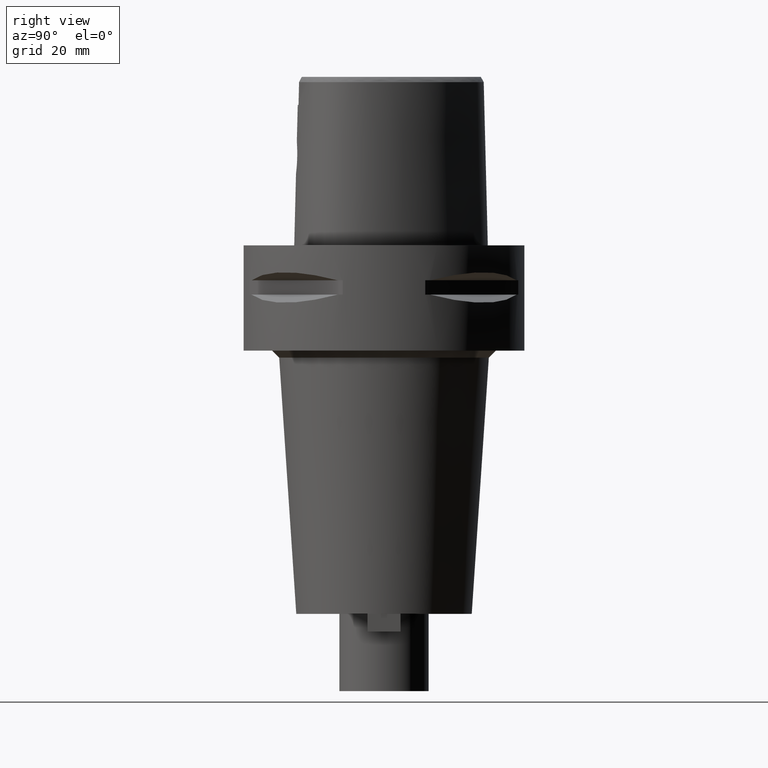
[diagram: clean part render]
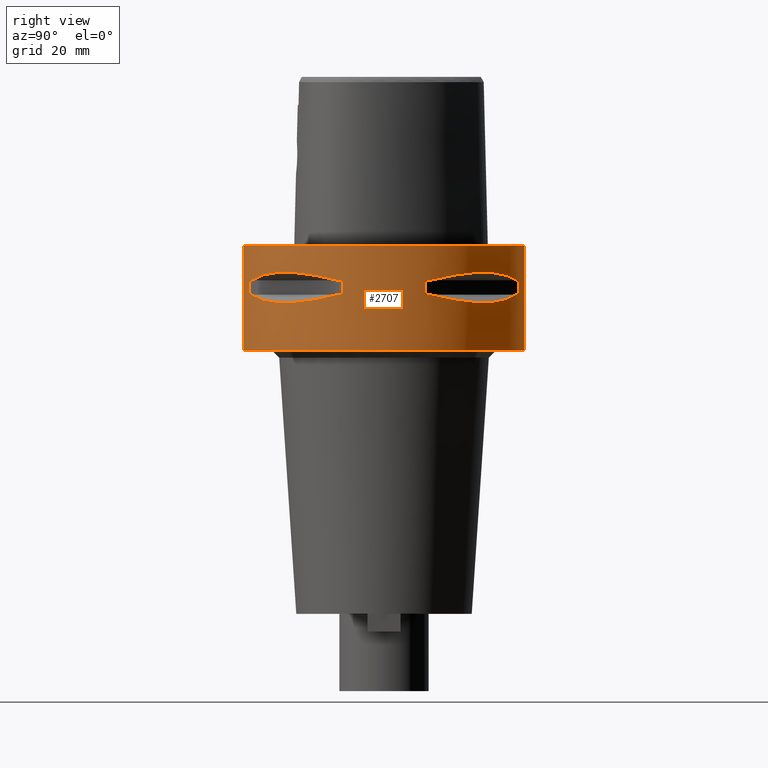
[diagram: same view with one face highlighted and labeled with its STEP entity id]
A machine part, right view. The second image highlights one B-rep face of the part: STEP entity #2707.
In plain terms, the highlighted cylindrical surface (partial cylindrical patch) has radius 40 mm, axis along (0, 0, -1).
Its self-contained STEP definition (entity closure, byte-faithful):
#294=CARTESIAN_POINT('',(0.E0,1.302411870893E-14,0.E0));
#295=DIRECTION('',(0.E0,0.E0,-1.E0));
#296=DIRECTION('',(0.E0,1.E0,0.E0));
#297=AXIS2_PLACEMENT_3D('',#294,#295,#296);
#388=DIRECTION('',(0.E0,0.E0,-1.E0));
#389=VECTOR('',#388,3.E1);
#390=CARTESIAN_POINT('',(0.E0,-4.E1,0.E0));
#391=LINE('',#390,#389);
#445=DIRECTION('',(0.E0,0.E0,-1.E0));
#446=VECTOR('',#445,3.E1);
#447=CARTESIAN_POINT('',(0.E0,4.E1,0.E0));
#448=LINE('',#447,#446);
#452=DIRECTION('',(0.E0,0.E0,-1.E0));
#453=VECTOR('',#452,4.1E0);
#454=CARTESIAN_POINT('',(1.176033600281E1,-3.823211342708E1,-9.95E0));
#455=LINE('',#454,#453);
#459=CARTESIAN_POINT('',(1.323717311056E1,-3.774622163927E1,-1.405E1));
#460=CARTESIAN_POINT('',(1.626143876435E1,-3.668564587161E1,-1.485167303901E1));
#461=CARTESIAN_POINT('',(2.171906657626E1,-3.397359084062E1,-1.597254843317E1));
#462=CARTESIAN_POINT('',(2.850324251697E1,-2.850324251697E1,-1.650891631180E1));
#463=CARTESIAN_POINT('',(3.397359084062E1,-2.171906657626E1,-1.597254843317E1));
#464=CARTESIAN_POINT('',(3.668564587161E1,-1.626143876435E1,-1.485167303901E1));
#465=CARTESIAN_POINT('',(3.774622163927E1,-1.323717311056E1,-1.405E1));
#470=DIRECTION('',(0.E0,0.E0,1.E0));
#471=VECTOR('',#470,4.1E0);
#472=CARTESIAN_POINT('',(3.823211342708E1,-1.176033600281E1,-1.405E1));
#473=LINE('',#472,#471);
#477=DIRECTION('',(0.E0,0.E0,-1.E0));
#478=VECTOR('',#477,4.1E0);
#479=CARTESIAN_POINT('',(3.823211342708E1,1.176033600281E1,-9.95E0));
#480=LINE('',#479,#478);
#484=CARTESIAN_POINT('',(3.774622163927E1,1.323717311056E1,-1.405E1));
#485=CARTESIAN_POINT('',(3.668564587161E1,1.626143876435E1,-1.485167303901E1));
#486=CARTESIAN_POINT('',(3.397359084062E1,2.171906657626E1,-1.597254843317E1));
#487=CARTESIAN_POINT('',(2.850324251697E1,2.850324251697E1,-1.650891631180E1));
#488=CARTESIAN_POINT('',(2.171906657626E1,3.397359084062E1,-1.597254843317E1));
#489=CARTESIAN_POINT('',(1.626143876435E1,3.668564587161E1,-1.485167303901E1));
#490=CARTESIAN_POINT('',(1.323717311056E1,3.774622163927E1,-1.405E1));
#495=DIRECTION('',(0.E0,0.E0,1.E0));
#496=VECTOR('',#495,4.1E0);
#497=CARTESIAN_POINT('',(1.176033600281E1,3.823211342708E1,-1.405E1));
#498=LINE('',#497,#496);
#502=CARTESIAN_POINT('',(0.E0,1.302411870893E-14,-3.E1));
#503=DIRECTION('',(0.E0,0.E0,1.E0));
#504=DIRECTION('',(0.E0,-1.E0,0.E0));
#505=AXIS2_PLACEMENT_3D('',#502,#503,#504);
#1372=CARTESIAN_POINT('',(1.323717311056E1,-3.774622163927E1,
-9.950000000002E0));
#1373=CARTESIAN_POINT('',(1.626143876435E1,-3.668564587161E1,
-9.148326960991E0));
#1374=CARTESIAN_POINT('',(2.171906657626E1,-3.397359084062E1,
-8.027451566833E0));
#1375=CARTESIAN_POINT('',(2.850324251697E1,-2.850324251697E1,
-7.491083688204E0));
#1376=CARTESIAN_POINT('',(3.397359084062E1,-2.171906657626E1,
-8.027451566833E0));
#1377=CARTESIAN_POINT('',(3.668564587161E1,-1.626143876435E1,
-9.148326960991E0));
#1378=CARTESIAN_POINT('',(3.774622163927E1,-1.323717311056E1,
-9.950000000002E0));
#1383=CARTESIAN_POINT('',(0.E0,1.302411870893E-14,-9.95E0));
#1384=DIRECTION('',(0.E0,0.E0,1.E0));
#1385=DIRECTION('',(9.436555409818E-1,-3.309293277639E-1,0.E0));
#1386=AXIS2_PLACEMENT_3D('',#1383,#1384,#1385);
#1391=CARTESIAN_POINT('',(0.E0,1.302411870893E-14,-9.95E0));
#1392=DIRECTION('',(0.E0,0.E0,1.E0));
#1393=DIRECTION('',(2.940084000703E-1,-9.558028356770E-1,0.E0));
#1394=AXIS2_PLACEMENT_3D('',#1391,#1392,#1393);
#1413=CARTESIAN_POINT('',(0.E0,1.302411870893E-14,-1.405E1));
#1414=DIRECTION('',(0.E0,0.E0,-1.E0));
#1415=DIRECTION('',(9.558028356770E-1,-2.940084000703E-1,0.E0));
#1416=AXIS2_PLACEMENT_3D('',#1413,#1414,#1415);
#1421=CARTESIAN_POINT('',(0.E0,1.302411870893E-14,-1.405E1));
#1422=DIRECTION('',(0.E0,0.E0,-1.E0));
#1423=DIRECTION('',(3.309293277639E-1,-9.436555409818E-1,0.E0));
#1424=AXIS2_PLACEMENT_3D('',#1421,#1422,#1423);
#1443=CARTESIAN_POINT('',(3.774622163927E1,1.323717311056E1,-9.950000000002E0));
#1444=CARTESIAN_POINT('',(3.668564587161E1,1.626143876435E1,-9.148326960991E0));
#1445=CARTESIAN_POINT('',(3.397359084062E1,2.171906657626E1,-8.027451566833E0));
#1446=CARTESIAN_POINT('',(2.850324251697E1,2.850324251697E1,-7.491083688204E0));
#1447=CARTESIAN_POINT('',(2.171906657626E1,3.397359084062E1,-8.027451566833E0));
#1448=CARTESIAN_POINT('',(1.626143876435E1,3.668564587161E1,-9.148326960991E0));
#1449=CARTESIAN_POINT('',(1.323717311056E1,3.774622163927E1,-9.950000000002E0));
#1454=CARTESIAN_POINT('',(0.E0,1.302411870893E-14,-9.95E0));
#1455=DIRECTION('',(0.E0,0.E0,1.E0));
#1456=DIRECTION('',(3.309293277639E-1,9.436555409818E-1,0.E0));
#1457=AXIS2_PLACEMENT_3D('',#1454,#1455,#1456);
#1462=CARTESIAN_POINT('',(0.E0,1.302411870893E-14,-9.95E0));
#1463=DIRECTION('',(0.E0,0.E0,1.E0));
#1464=DIRECTION('',(9.558028356770E-1,2.940084000703E-1,0.E0));
#1465=AXIS2_PLACEMENT_3D('',#1462,#1463,#1464);
#1484=CARTESIAN_POINT('',(0.E0,1.302411870893E-14,-1.405E1));
#1485=DIRECTION('',(0.E0,0.E0,-1.E0));
#1486=DIRECTION('',(2.940084000703E-1,9.558028356770E-1,0.E0));
#1487=AXIS2_PLACEMENT_3D('',#1484,#1485,#1486);
#1492=CARTESIAN_POINT('',(0.E0,1.302411870893E-14,-1.405E1));
#1493=DIRECTION('',(0.E0,0.E0,-1.E0));
#1494=DIRECTION('',(9.436555409818E-1,3.309293277639E-1,0.E0));
#1495=AXIS2_PLACEMENT_3D('',#1492,#1493,#1494);
#1678=CARTESIAN_POINT('',(0.E0,-4.E1,0.E0));
#1679=CARTESIAN_POINT('',(0.E0,4.E1,0.E0));
#1680=VERTEX_POINT('',#1678);
#1681=VERTEX_POINT('',#1679);
#1682=CARTESIAN_POINT('',(0.E0,4.E1,-3.E1));
#1683=VERTEX_POINT('',#1682);
#1684=CARTESIAN_POINT('',(0.E0,-4.E1,-3.E1));
#1685=VERTEX_POINT('',#1684);
#1712=VERTEX_POINT('',#1372);
#1713=VERTEX_POINT('',#1378);
#1714=CARTESIAN_POINT('',(1.176033600281E1,-3.823211342708E1,-9.95E0));
#1715=VERTEX_POINT('',#1714);
#1716=CARTESIAN_POINT('',(1.176033600281E1,-3.823211342708E1,-1.405E1));
#1717=VERTEX_POINT('',#1716);
#1718=CARTESIAN_POINT('',(1.323717311056E1,-3.774622163927E1,-1.405E1));
#1719=VERTEX_POINT('',#1718);
#1720=VERTEX_POINT('',#465);
#1721=CARTESIAN_POINT('',(3.823211342708E1,-1.176033600281E1,-1.405E1));
#1722=VERTEX_POINT('',#1721);
#1723=CARTESIAN_POINT('',(3.823211342708E1,-1.176033600281E1,-9.95E0));
#1724=VERTEX_POINT('',#1723);
#1725=VERTEX_POINT('',#1443);
#1726=VERTEX_POINT('',#1449);
#1727=CARTESIAN_POINT('',(3.823211342708E1,1.176033600281E1,-9.95E0));
#1728=VERTEX_POINT('',#1727);
#1729=CARTESIAN_POINT('',(3.823211342708E1,1.176033600281E1,-1.405E1));
#1730=VERTEX_POINT('',#1729);
#1731=CARTESIAN_POINT('',(3.774622163927E1,1.323717311056E1,-1.405E1));
#1732=VERTEX_POINT('',#1731);
#1733=VERTEX_POINT('',#490);
#1734=CARTESIAN_POINT('',(1.176033600281E1,3.823211342708E1,-1.405E1));
#1735=VERTEX_POINT('',#1734);
#1736=CARTESIAN_POINT('',(1.176033600281E1,3.823211342708E1,-9.95E0));
#1737=VERTEX_POINT('',#1736);
#2659=CARTESIAN_POINT('',(0.E0,1.302411870893E-14,6.35E0));
#2660=DIRECTION('',(0.E0,0.E0,-1.E0));
#2661=DIRECTION('',(0.E0,-1.E0,0.E0));
#2662=AXIS2_PLACEMENT_3D('',#2659,#2660,#2661);
#2663=CYLINDRICAL_SURFACE('',#2662,4.E1);
#2664=ORIENTED_EDGE('',*,*,#2613,.T.);
#2666=ORIENTED_EDGE('',*,*,#2665,.F.);
#2667=ORIENTED_EDGE('',*,*,#2616,.F.);
#2668=ORIENTED_EDGE('',*,*,#2598,.F.);
#2669=EDGE_LOOP('',(#2664,#2666,#2667,#2668));
#2670=FACE_OUTER_BOUND('',#2669,.F.);
#2672=ORIENTED_EDGE('',*,*,#2671,.F.);
#2674=ORIENTED_EDGE('',*,*,#2673,.F.);
#2676=ORIENTED_EDGE('',*,*,#2675,.T.);
#2678=ORIENTED_EDGE('',*,*,#2677,.F.);
#2680=ORIENTED_EDGE('',*,*,#2679,.T.);
#2682=ORIENTED_EDGE('',*,*,#2681,.F.);
#2684=ORIENTED_EDGE('',*,*,#2683,.T.);
#2686=ORIENTED_EDGE('',*,*,#2685,.F.);
#2687=EDGE_LOOP('',(#2672,#2674,#2676,#2678,#2680,#2682,#2684,#2686));
#2688=FACE_BOUND('',#2687,.F.);
#2690=ORIENTED_EDGE('',*,*,#2689,.F.);
#2692=ORIENTED_EDGE('',*,*,#2691,.F.);
#2694=ORIENTED_EDGE('',*,*,#2693,.T.);
#2696=ORIENTED_EDGE('',*,*,#2695,.F.);
#2698=ORIENTED_EDGE('',*,*,#2697,.T.);
#2700=ORIENTED_EDGE('',*,*,#2699,.F.);
#2702=ORIENTED_EDGE('',*,*,#2701,.T.);
#2704=ORIENTED_EDGE('',*,*,#2703,.F.);
#2705=EDGE_LOOP('',(#2690,#2692,#2694,#2696,#2698,#2700,#2702,#2704));
#2706=FACE_BOUND('',#2705,.F.);
#298=CIRCLE('',#297,4.E1);
#466=B_SPLINE_CURVE_WITH_KNOTS('',3,(#459,#460,#461,#462,#463,#464,#465),
.UNSPECIFIED.,.F.,.F.,(4,1,1,1,4),(0.E0,2.5E-1,5.E-1,7.5E-1,1.E0),
.UNSPECIFIED.);
#491=B_SPLINE_CURVE_WITH_KNOTS('',3,(#484,#485,#486,#487,#488,#489,#490),
.UNSPECIFIED.,.F.,.F.,(4,1,1,1,4),(0.E0,2.5E-1,5.E-1,7.5E-1,1.E0),
.UNSPECIFIED.);
#506=CIRCLE('',#505,4.E1);
#1379=B_SPLINE_CURVE_WITH_KNOTS('',3,(#1372,#1373,#1374,#1375,#1376,#1377,
#1378),.UNSPECIFIED.,.F.,.F.,(4,1,1,1,4),(0.E0,2.5E-1,5.E-1,7.5E-1,1.E0),
.UNSPECIFIED.);
#1387=CIRCLE('',#1386,4.E1);
#1395=CIRCLE('',#1394,4.E1);
#1417=CIRCLE('',#1416,4.E1);
#1425=CIRCLE('',#1424,4.E1);
#1450=B_SPLINE_CURVE_WITH_KNOTS('',3,(#1443,#1444,#1445,#1446,#1447,#1448,
#1449),.UNSPECIFIED.,.F.,.F.,(4,1,1,1,4),(0.E0,2.5E-1,5.E-1,7.5E-1,1.E0),
.UNSPECIFIED.);
#1458=CIRCLE('',#1457,4.E1);
#1466=CIRCLE('',#1465,4.E1);
#1488=CIRCLE('',#1487,4.E1);
#1496=CIRCLE('',#1495,4.E1);
#2598=EDGE_CURVE('',#1681,#1680,#298,.T.);
#2613=EDGE_CURVE('',#1681,#1683,#448,.T.);
#2616=EDGE_CURVE('',#1680,#1685,#391,.T.);
#2665=EDGE_CURVE('',#1685,#1683,#506,.T.);
#2671=EDGE_CURVE('',#1712,#1713,#1379,.T.);
#2673=EDGE_CURVE('',#1715,#1712,#1395,.T.);
#2675=EDGE_CURVE('',#1715,#1717,#455,.T.);
#2677=EDGE_CURVE('',#1719,#1717,#1425,.T.);
#2679=EDGE_CURVE('',#1719,#1720,#466,.T.);
#2681=EDGE_CURVE('',#1722,#1720,#1417,.T.);
#2683=EDGE_CURVE('',#1722,#1724,#473,.T.);
#2685=EDGE_CURVE('',#1713,#1724,#1387,.T.);
#2689=EDGE_CURVE('',#1725,#1726,#1450,.T.);
#2691=EDGE_CURVE('',#1728,#1725,#1466,.T.);
#2693=EDGE_CURVE('',#1728,#1730,#480,.T.);
#2695=EDGE_CURVE('',#1732,#1730,#1496,.T.);
#2697=EDGE_CURVE('',#1732,#1733,#491,.T.);
#2699=EDGE_CURVE('',#1735,#1733,#1488,.T.);
#2701=EDGE_CURVE('',#1735,#1737,#498,.T.);
#2703=EDGE_CURVE('',#1726,#1737,#1458,.T.);
#2707=ADVANCED_FACE('',(#2670,#2688,#2706),#2663,.T.);